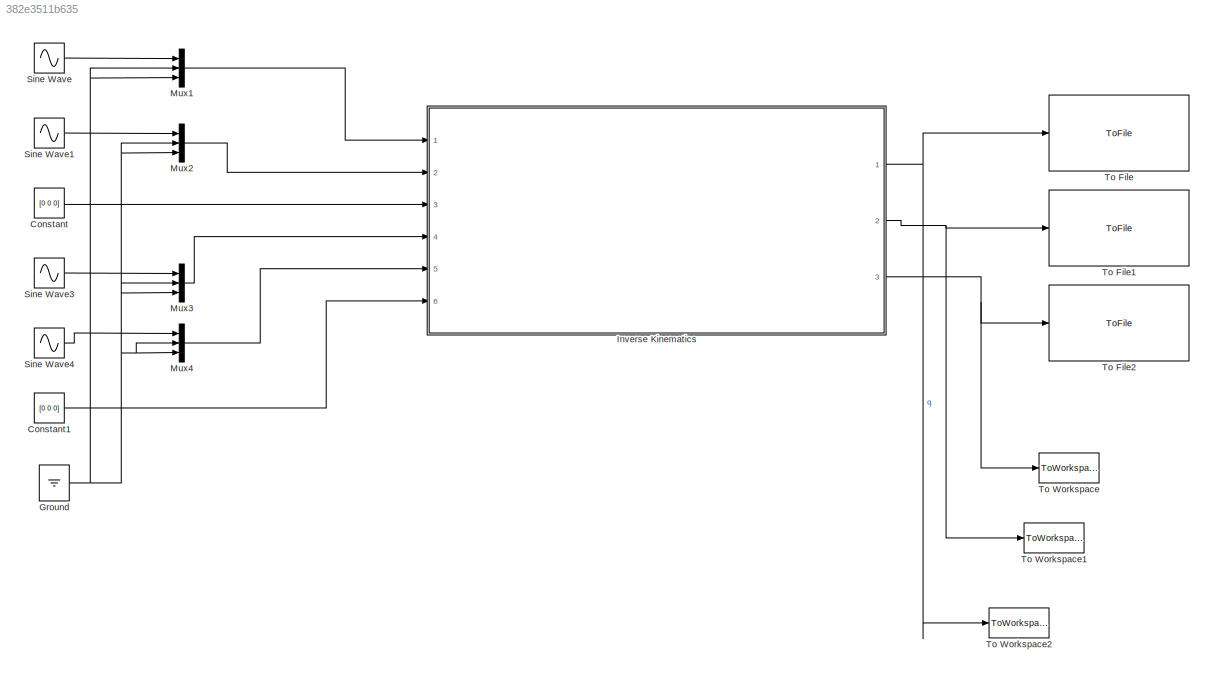
MODEL slx_382e3511b635
KIND model
CONFIG AbsTol = auto
CONFIG EnableMultiTasking = on
CONFIG FixedStep = auto
CONFIG MaxStep = auto
CONFIG MinStep = auto
CONFIG RelTol = 1e-3
CONFIG SampleTimeConstraint = Unconstrained
CONFIG Solver = VariableStepAuto
CONFIG SolverName = VariableStepAuto
CONFIG StartTime = 0.0
CONFIG StopTime = 10.0
BLOCK [Constant] Constant
  Value = [0 0 0]
  VectorParams1D = off
BLOCK [Constant] Constant1
  Value = [0 0 0]
  VectorParams1D = off
BLOCK [Ground] Ground
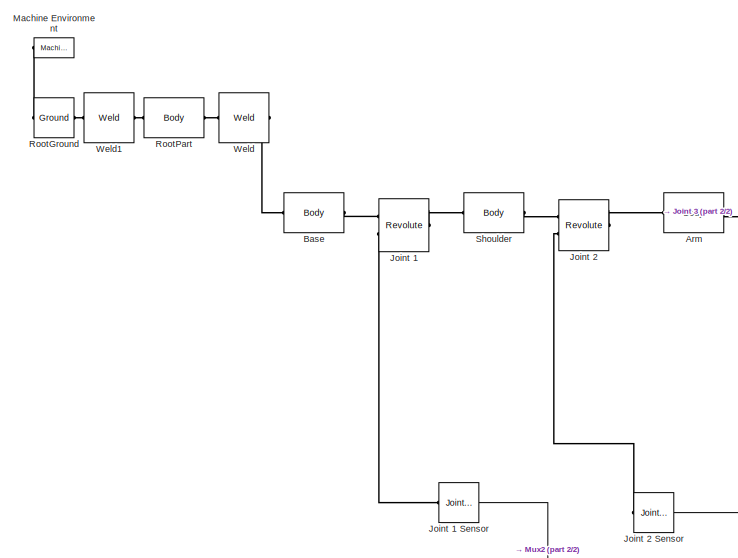
[diagram: Inverse Kinematics  - part 1/2, middle left region]
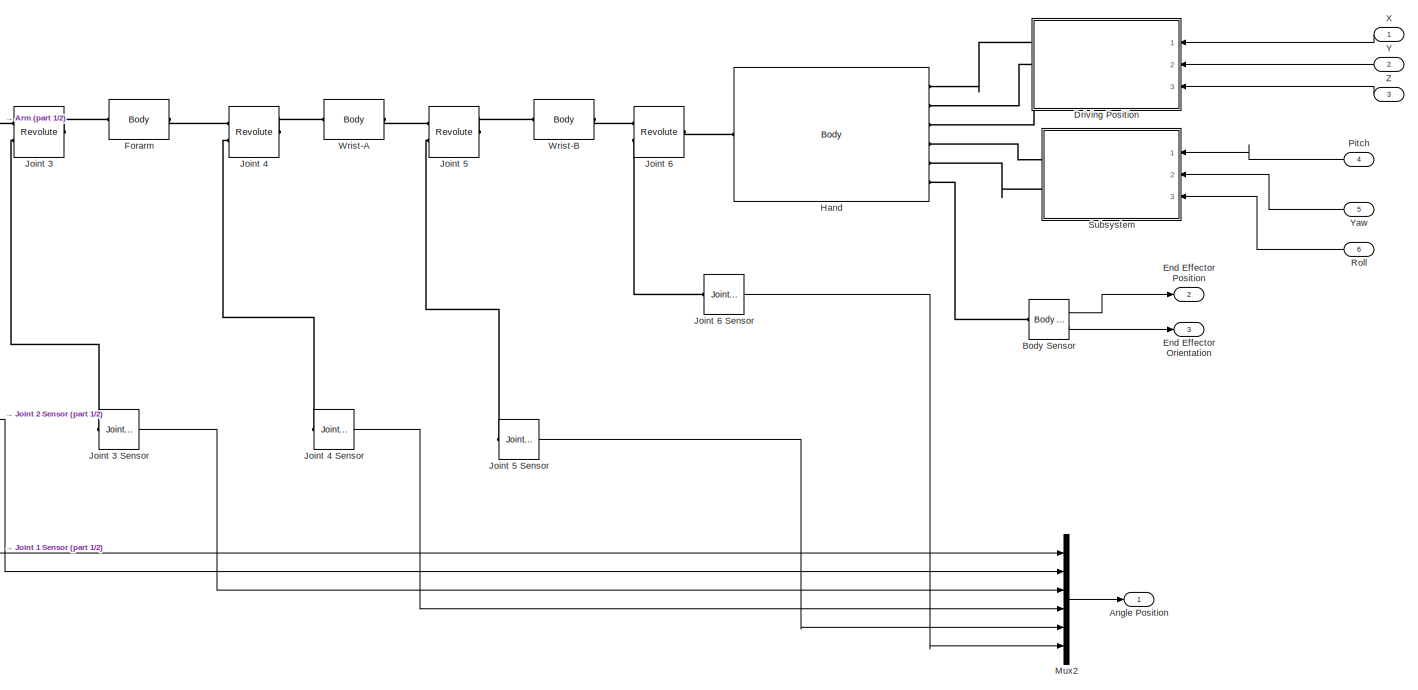
[diagram: Inverse Kinematics  - part 2/2, right side, full height]
BLOCK [SubSystem] Inverse Kinematics 
  Ports = [6, 3]
  RequestExecContextInheritance = off
  Variant = off
BLOCK [Inport] Inverse Kinematics / X
  IconDisplay = Port number
BLOCK [Outport] Inverse Kinematics /Angle Position 
  IconDisplay = Port number
BLOCK [Reference] Inverse Kinematics /Arm  REF=mblibv1/Bodies/Body
  Ports = [0, 0, 0, 0, 0, 1, 1]
  SourceBlock = mblibv1/Bodies/Body
  SourceProductBaseCode = MS
  SourceProductName = Simscape Multibody
  SourceType = Body
BLOCK [Reference] Inverse Kinematics /Base  REF=mblibv1/Bodies/Body
  Ports = [0, 0, 0, 0, 0, 1, 1]
  SourceBlock = mblibv1/Bodies/Body
  SourceProductBaseCode = MS
  SourceProductName = Simscape Multibody
  SourceType = Body
BLOCK [Reference] Inverse Kinematics /Body Sensor  REF=mblibv1/Sensors & 
Actuators/Body Sensor
  Ports = [0, 2, 0, 0, 0, 1]
  SourceBlock = mblibv1/Sensors & \nActuators/Body Sensor
  SourceProductBaseCode = MS
  SourceProductName = Simscape Multibody
  SourceType = Body Sensor
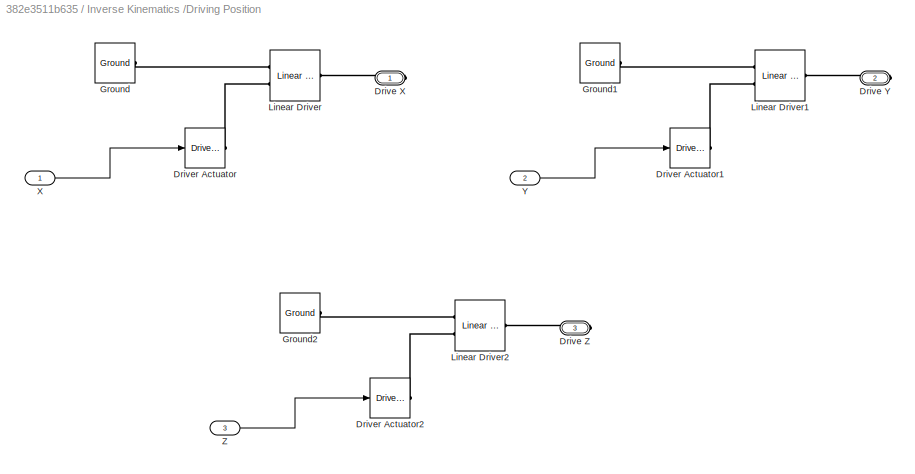
BLOCK [SubSystem] Inverse Kinematics /Driving Position
  Ports = [3, 0, 0, 0, 0, 0, 3]
  RequestExecContextInheritance = off
  Variant = off
BLOCK [PMIOPort] Inverse Kinematics /Driving Position/Drive X
  Port = 1
  Side = Right
BLOCK [PMIOPort] Inverse Kinematics /Driving Position/Drive Y
  Port = 2
  Side = Right
BLOCK [PMIOPort] Inverse Kinematics /Driving Position/Drive Z
  Port = 3
  Side = Right
BLOCK [Reference] Inverse Kinematics /Driving Position/Driver Actuator  REF=mblibv1/Sensors & 
Actuators/Driver Actuator
  Ports = [1, 0, 0, 0, 0, 0, 1]
  SourceBlock = mblibv1/Sensors & \nActuators/Driver Actuator
  SourceProductBaseCode = MS
  SourceProductName = Simscape Multibody
  SourceType = Driver Actuator
BLOCK [Reference] Inverse Kinematics /Driving Position/Driver Actuator1  REF=mblibv1/Sensors & 
Actuators/Driver Actuator
  Ports = [1, 0, 0, 0, 0, 0, 1]
  SourceBlock = mblibv1/Sensors & \nActuators/Driver Actuator
  SourceProductBaseCode = MS
  SourceProductName = Simscape Multibody
  SourceType = Driver Actuator
BLOCK [Reference] Inverse Kinematics /Driving Position/Driver Actuator2  REF=mblibv1/Sensors & 
Actuators/Driver Actuator
  Ports = [1, 0, 0, 0, 0, 0, 1]
  SourceBlock = mblibv1/Sensors & \nActuators/Driver Actuator
  SourceProductBaseCode = MS
  SourceProductName = Simscape Multibody
  SourceType = Driver Actuator
BLOCK [Reference] Inverse Kinematics /Driving Position/Ground  REF=mblibv1/Bodies/Ground
  Ports = [0, 0, 0, 0, 0, 0, 1]
  SourceBlock = mblibv1/Bodies/Ground
  SourceProductBaseCode = MS
  SourceProductName = Simscape Multibody
  SourceType = Ground
  UserDataPersistent = on
BLOCK [Reference] Inverse Kinematics /Driving Position/Ground1  REF=mblibv1/Bodies/Ground
  Ports = [0, 0, 0, 0, 0, 0, 1]
  SourceBlock = mblibv1/Bodies/Ground
  SourceProductBaseCode = MS
  SourceProductName = Simscape Multibody
  SourceType = Ground
  UserDataPersistent = on
BLOCK [Reference] Inverse Kinematics /Driving Position/Ground2  REF=mblibv1/Bodies/Ground
  Ports = [0, 0, 0, 0, 0, 0, 1]
  SourceBlock = mblibv1/Bodies/Ground
  SourceProductBaseCode = MS
  SourceProductName = Simscape Multibody
  SourceType = Ground
  UserDataPersistent = on
BLOCK [Reference] Inverse Kinematics /Driving Position/Linear Driver  REF=mblibv1/Constraints & 
Drivers/Linear Driver
  Ports = [0, 0, 0, 0, 0, 2, 1]
  SourceBlock = mblibv1/Constraints & \nDrivers/Linear Driver
  SourceProductBaseCode = MS
  SourceProductName = Simscape Multibody
  SourceType = Linear Driver
BLOCK [Reference] Inverse Kinematics /Driving Position/Linear Driver1  REF=mblibv1/Constraints & 
Drivers/Linear Driver
  Ports = [0, 0, 0, 0, 0, 2, 1]
  SourceBlock = mblibv1/Constraints & \nDrivers/Linear Driver
  SourceProductBaseCode = MS
  SourceProductName = Simscape Multibody
  SourceType = Linear Driver
BLOCK [Reference] Inverse Kinematics /Driving Position/Linear Driver2  REF=mblibv1/Constraints & 
Drivers/Linear Driver
  Ports = [0, 0, 0, 0, 0, 2, 1]
  SourceBlock = mblibv1/Constraints & \nDrivers/Linear Driver
  SourceProductBaseCode = MS
  SourceProductName = Simscape Multibody
  SourceType = Linear Driver
BLOCK [Inport] Inverse Kinematics /Driving Position/X 
  IconDisplay = Port number
BLOCK [Inport] Inverse Kinematics /Driving Position/Y
  IconDisplay = Port number
  Port = 2
BLOCK [Inport] Inverse Kinematics /Driving Position/Z
  IconDisplay = Port number
  Port = 3
BLOCK [Outport] Inverse Kinematics /End Effector Orientation
  IconDisplay = Port number
  Port = 3
BLOCK [Outport] Inverse Kinematics /End Effector Position
  IconDisplay = Port number
  Port = 2
BLOCK [Reference] Inverse Kinematics /Forarm  REF=mblibv1/Bodies/Body
  Ports = [0, 0, 0, 0, 0, 1, 1]
  SourceBlock = mblibv1/Bodies/Body
  SourceProductBaseCode = MS
  SourceProductName = Simscape Multibody
  SourceType = Body
BLOCK [Reference] Inverse Kinematics /Hand  REF=mblibv1/Bodies/Body
  Ports = [0, 0, 0, 0, 0, 1, 6]
  SourceBlock = mblibv1/Bodies/Body
  SourceProductBaseCode = MS
  SourceProductName = Simscape Multibody
  SourceType = Body
BLOCK [Reference] Inverse Kinematics /Joint 1  REF=mblibv1/Joints/Revolute
  Ports = [0, 0, 0, 0, 0, 2, 1]
  SourceBlock = mblibv1/Joints/Revolute
  SourceProductBaseCode = MS
  SourceProductName = Simscape Multibody
  SourceType = Revolute
BLOCK [Reference] Inverse Kinematics /Joint 1 Sensor  REF=mblibv1/Sensors & 
Actuators/Joint Sensor
  Ports = [0, 1, 0, 0, 0, 1]
  SourceBlock = mblibv1/Sensors & \nActuators/Joint Sensor
  SourceProductBaseCode = MS
  SourceProductName = Simscape Multibody
  SourceType = Joint Sensor
BLOCK [Reference] Inverse Kinematics /Joint 2  REF=mblibv1/Joints/Revolute
  Ports = [0, 0, 0, 0, 0, 2, 1]
  SourceBlock = mblibv1/Joints/Revolute
  SourceProductBaseCode = MS
  SourceProductName = Simscape Multibody
  SourceType = Revolute
BLOCK [Reference] Inverse Kinematics /Joint 2 Sensor  REF=mblibv1/Sensors & 
Actuators/Joint Sensor
  Ports = [0, 1, 0, 0, 0, 1]
  SourceBlock = mblibv1/Sensors & \nActuators/Joint Sensor
  SourceProductBaseCode = MS
  SourceProductName = Simscape Multibody
  SourceType = Joint Sensor
BLOCK [Reference] Inverse Kinematics /Joint 3  REF=mblibv1/Joints/Revolute
  Ports = [0, 0, 0, 0, 0, 2, 1]
  SourceBlock = mblibv1/Joints/Revolute
  SourceProductBaseCode = MS
  SourceProductName = Simscape Multibody
  SourceType = Revolute
BLOCK [Reference] Inverse Kinematics /Joint 3 Sensor  REF=mblibv1/Sensors & 
Actuators/Joint Sensor
  Ports = [0, 1, 0, 0, 0, 1]
  SourceBlock = mblibv1/Sensors & \nActuators/Joint Sensor
  SourceProductBaseCode = MS
  SourceProductName = Simscape Multibody
  SourceType = Joint Sensor
BLOCK [Reference] Inverse Kinematics /Joint 4  REF=mblibv1/Joints/Revolute
  Ports = [0, 0, 0, 0, 0, 2, 1]
  SourceBlock = mblibv1/Joints/Revolute
  SourceProductBaseCode = MS
  SourceProductName = Simscape Multibody
  SourceType = Revolute
BLOCK [Reference] Inverse Kinematics /Joint 4 Sensor  REF=mblibv1/Sensors & 
Actuators/Joint Sensor
  Ports = [0, 1, 0, 0, 0, 1]
  SourceBlock = mblibv1/Sensors & \nActuators/Joint Sensor
  SourceProductBaseCode = MS
  SourceProductName = Simscape Multibody
  SourceType = Joint Sensor
BLOCK [Reference] Inverse Kinematics /Joint 5  REF=mblibv1/Joints/Revolute
  Ports = [0, 0, 0, 0, 0, 2, 1]
  SourceBlock = mblibv1/Joints/Revolute
  SourceProductBaseCode = MS
  SourceProductName = Simscape Multibody
  SourceType = Revolute
BLOCK [Reference] Inverse Kinematics /Joint 5 Sensor  REF=mblibv1/Sensors & 
Actuators/Joint Sensor
  Ports = [0, 1, 0, 0, 0, 1]
  SourceBlock = mblibv1/Sensors & \nActuators/Joint Sensor
  SourceProductBaseCode = MS
  SourceProductName = Simscape Multibody
  SourceType = Joint Sensor
BLOCK [Reference] Inverse Kinematics /Joint 6  REF=mblibv1/Joints/Revolute
  Ports = [0, 0, 0, 0, 0, 2, 1]
  SourceBlock = mblibv1/Joints/Revolute
  SourceProductBaseCode = MS
  SourceProductName = Simscape Multibody
  SourceType = Revolute
BLOCK [Reference] Inverse Kinematics /Joint 6 Sensor  REF=mblibv1/Sensors & 
Actuators/Joint Sensor
  Ports = [0, 1, 0, 0, 0, 1]
  SourceBlock = mblibv1/Sensors & \nActuators/Joint Sensor
  SourceProductBaseCode = MS
  SourceProductName = Simscape Multibody
  SourceType = Joint Sensor
BLOCK [Reference] Inverse Kinematics /Machine Environment  REF=mblibv1/Bodies/Machine
Environment
  Ports = [0, 0, 0, 0, 0, 0, 1]
  SourceBlock = mblibv1/Bodies/Machine\nEnvironment
  SourceProductBaseCode = MS
  SourceProductName = Simscape Multibody
  SourceType = Machine Environment
BLOCK [Mux] Inverse Kinematics /Mux2
  DisplayOption = bar
  Inputs = 6
  Ports = [6, 1]
BLOCK [Inport] Inverse Kinematics /Pitch
  IconDisplay = Port number
  Port = 4
BLOCK [Inport] Inverse Kinematics /Roll 
  IconDisplay = Port number
  Port = 6
BLOCK [Reference] Inverse Kinematics /RootGround  REF=mblibv1/Bodies/Ground
  Ports = [0, 0, 0, 0, 0, 1, 1]
  SourceBlock = mblibv1/Bodies/Ground
  SourceProductBaseCode = MS
  SourceProductName = Simscape Multibody
  SourceType = Ground
  UserDataPersistent = on
BLOCK [Reference] Inverse Kinematics /RootPart  REF=mblibv1/Bodies/Body
  Ports = [0, 0, 0, 0, 0, 1, 1]
  SourceBlock = mblibv1/Bodies/Body
  SourceProductBaseCode = MS
  SourceProductName = Simscape Multibody
  SourceType = Body
BLOCK [Reference] Inverse Kinematics /Shoulder  REF=mblibv1/Bodies/Body
  Ports = [0, 0, 0, 0, 0, 1, 1]
  SourceBlock = mblibv1/Bodies/Body
  SourceProductBaseCode = MS
  SourceProductName = Simscape Multibody
  SourceType = Body
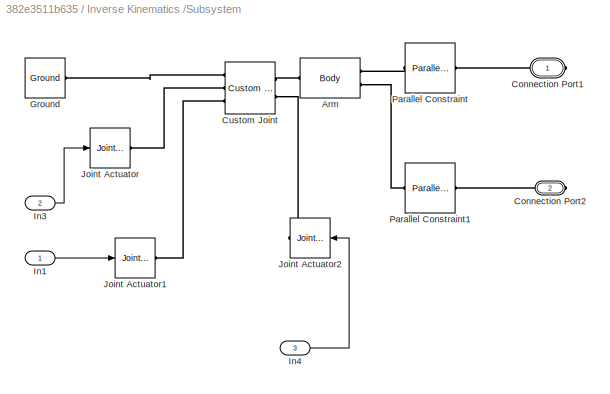
BLOCK [SubSystem] Inverse Kinematics /Subsystem
  Ports = [3, 0, 0, 0, 0, 0, 2]
  RequestExecContextInheritance = off
  Variant = off
BLOCK [Reference] Inverse Kinematics /Subsystem/Arm  REF=mblibv1/Bodies/Body
  Ports = [0, 0, 0, 0, 0, 1, 2]
  SourceBlock = mblibv1/Bodies/Body
  SourceProductBaseCode = MS
  SourceProductName = Simscape Multibody
  SourceType = Body
BLOCK [PMIOPort] Inverse Kinematics /Subsystem/Connection Port1
  Port = 1
  Side = Right
BLOCK [PMIOPort] Inverse Kinematics /Subsystem/Connection Port2
  Port = 2
  Side = Right
BLOCK [Reference] Inverse Kinematics /Subsystem/Custom Joint  REF=mblibv1/Joints/Custom Joint
  Ports = [0, 0, 0, 0, 0, 3, 2]
  SourceBlock = mblibv1/Joints/Custom Joint
  SourceProductBaseCode = MS
  SourceProductName = Simscape Multibody
  SourceType = Custom Joint
BLOCK [Reference] Inverse Kinematics /Subsystem/Ground  REF=mblibv1/Bodies/Ground
  Ports = [0, 0, 0, 0, 0, 0, 1]
  SourceBlock = mblibv1/Bodies/Ground
  SourceProductBaseCode = MS
  SourceProductName = Simscape Multibody
  SourceType = Ground
  UserDataPersistent = on
BLOCK [Inport] Inverse Kinematics /Subsystem/In1
  IconDisplay = Port number
BLOCK [Inport] Inverse Kinematics /Subsystem/In3
  IconDisplay = Port number
  Port = 2
BLOCK [Inport] Inverse Kinematics /Subsystem/In4
  IconDisplay = Port number
  Port = 3
BLOCK [Reference] Inverse Kinematics /Subsystem/Joint Actuator  REF=mblibv1/Sensors & 
Actuators/Joint Actuator
  Ports = [1, 0, 0, 0, 0, 0, 1]
  SourceBlock = mblibv1/Sensors & \nActuators/Joint Actuator
  SourceProductBaseCode = MS
  SourceProductName = Simscape Multibody
  SourceType = Joint Actuator
BLOCK [Reference] Inverse Kinematics /Subsystem/Joint Actuator1  REF=mblibv1/Sensors & 
Actuators/Joint Actuator
  Ports = [1, 0, 0, 0, 0, 0, 1]
  SourceBlock = mblibv1/Sensors & \nActuators/Joint Actuator
  SourceProductBaseCode = MS
  SourceProductName = Simscape Multibody
  SourceType = Joint Actuator
BLOCK [Reference] Inverse Kinematics /Subsystem/Joint Actuator2  REF=mblibv1/Sensors & 
Actuators/Joint Actuator
  Ports = [1, 0, 0, 0, 0, 0, 1]
  SourceBlock = mblibv1/Sensors & \nActuators/Joint Actuator
  SourceProductBaseCode = MS
  SourceProductName = Simscape Multibody
  SourceType = Joint Actuator
BLOCK [Reference] Inverse Kinematics /Subsystem/Parallel Constraint  REF=mblibv1/Constraints & 
Drivers/Parallel Constraint
  Ports = [0, 0, 0, 0, 0, 1, 1]
  SourceBlock = mblibv1/Constraints & \nDrivers/Parallel Constraint
  SourceProductBaseCode = MS
  SourceProductName = Simscape Multibody
  SourceType = Parallel Constraint
BLOCK [Reference] Inverse Kinematics /Subsystem/Parallel Constraint1  REF=mblibv1/Constraints & 
Drivers/Parallel Constraint
  Ports = [0, 0, 0, 0, 0, 1, 1]
  SourceBlock = mblibv1/Constraints & \nDrivers/Parallel Constraint
  SourceProductBaseCode = MS
  SourceProductName = Simscape Multibody
  SourceType = Parallel Constraint
BLOCK [Reference] Inverse Kinematics /Weld  REF=mblibv1/Joints/Weld
  Ports = [0, 0, 0, 0, 0, 1, 1]
  SourceBlock = mblibv1/Joints/Weld
  SourceProductBaseCode = MS
  SourceProductName = Simscape Multibody
  SourceType = Weld
BLOCK [Reference] Inverse Kinematics /Weld1  REF=mblibv1/Joints/Weld
  Ports = [0, 0, 0, 0, 0, 1, 1]
  SourceBlock = mblibv1/Joints/Weld
  SourceProductBaseCode = MS
  SourceProductName = Simscape Multibody
  SourceType = Weld
BLOCK [Reference] Inverse Kinematics /Wrist-A  REF=mblibv1/Bodies/Body
  Ports = [0, 0, 0, 0, 0, 1, 1]
  SourceBlock = mblibv1/Bodies/Body
  SourceProductBaseCode = MS
  SourceProductName = Simscape Multibody
  SourceType = Body
BLOCK [Reference] Inverse Kinematics /Wrist-B  REF=mblibv1/Bodies/Body
  Ports = [0, 0, 0, 0, 0, 1, 1]
  SourceBlock = mblibv1/Bodies/Body
  SourceProductBaseCode = MS
  SourceProductName = Simscape Multibody
  SourceType = Body
BLOCK [Inport] Inverse Kinematics /Y
  IconDisplay = Port number
  Port = 2
BLOCK [Inport] Inverse Kinematics /Yaw
  IconDisplay = Port number
  Port = 5
BLOCK [Inport] Inverse Kinematics /Z
  IconDisplay = Port number
  Port = 3
BLOCK [Mux] Mux1
  DisplayOption = bar
  Inputs = 3
  Ports = [3, 1]
BLOCK [Mux] Mux2
  DisplayOption = bar
  Inputs = 3
  Ports = [3, 1]
BLOCK [Mux] Mux3
  DisplayOption = bar
  Inputs = 3
  Ports = [3, 1]
BLOCK [Mux] Mux4
  DisplayOption = bar
  Inputs = 3
  Ports = [3, 1]
BLOCK [Sin] Sine Wave
  Amplitude = 0.2
  Bias = -2
  Frequency = 2*pi
  Phase = pi/2
  Ports = [0, 1]
  SampleTime = 0
BLOCK [Sin] Sine Wave1
  Amplitude = 0.2
  Bias = -1
  Frequency = 2*pi
  Ports = [0, 1]
  SampleTime = 0
BLOCK [Sin] Sine Wave3
  Amplitude = 10
  Bias = 85
  Frequency = 2*pi
  Phase = pi
  Ports = [0, 1]
  SampleTime = 0
BLOCK [Sin] Sine Wave4
  Amplitude = 10
  Frequency = 2*pi
  Phase = pi/2
  Ports = [0, 1]
  SampleTime = 0
BLOCK [ToFile] To File
  Filename = JointAngles.mat
  MatrixName = q
  Ports = [1]
  SaveFormat = Timeseries
BLOCK [ToFile] To File1
  Filename = EEPosition.mat
  MatrixName = xe
  Ports = [1]
  SaveFormat = Timeseries
BLOCK [ToFile] To File2
  Filename = EEOrientation.mat
  MatrixName = thetae
  Ports = [1]
  SaveFormat = Timeseries
BLOCK [ToWorkspace] To Workspace
  FixptAsFi = on
  MaxDataPoints = inf
  Ports = [1]
  SampleTime = -1
  Save2DSignal = 3-D array (concatenate along third dimension)
  SaveFormat = Timeseries
  VariableName = simout
BLOCK [ToWorkspace] To Workspace1
  FixptAsFi = on
  MaxDataPoints = inf
  Ports = [1]
  SampleTime = -1
  Save2DSignal = 3-D array (concatenate along third dimension)
  SaveFormat = Timeseries
  VariableName = simout1
BLOCK [ToWorkspace] To Workspace2
  FixptAsFi = on
  MaxDataPoints = inf
  Ports = [1]
  SampleTime = -1
  Save2DSignal = 3-D array (concatenate along third dimension)
  SaveFormat = Timeseries
  VariableName = simout2
LINE Constant1:1 -> Inverse Kinematics :6
LINE Constant:1 -> Inverse Kinematics :3
NET Ground:1 -> Mux1:2, Mux1:3, Mux2:2, Mux2:3, Mux3:2, Mux3:3, Mux4:2, Mux4:3
LINE Inverse Kinematics / X:1 -> Inverse Kinematics /Driving Position:1
LINE Inverse Kinematics /Body Sensor:1 -> Inverse Kinematics /End Effector Position:1
LINE Inverse Kinematics /Body Sensor:2 -> Inverse Kinematics /End Effector Orientation:1
LINE Inverse Kinematics /Driving Position/X :1 -> Inverse Kinematics /Driving Position/Driver Actuator:1
LINE Inverse Kinematics /Driving Position/Y:1 -> Inverse Kinematics /Driving Position/Driver Actuator1:1
LINE Inverse Kinematics /Driving Position/Z:1 -> Inverse Kinematics /Driving Position/Driver Actuator2:1
LINE Inverse Kinematics /Joint 1 Sensor:1 -> Inverse Kinematics /Mux2:1
LINE Inverse Kinematics /Joint 2 Sensor:1 -> Inverse Kinematics /Mux2:2
LINE Inverse Kinematics /Joint 3 Sensor:1 -> Inverse Kinematics /Mux2:3
LINE Inverse Kinematics /Joint 4 Sensor:1 -> Inverse Kinematics /Mux2:4
LINE Inverse Kinematics /Joint 5 Sensor:1 -> Inverse Kinematics /Mux2:5
LINE Inverse Kinematics /Joint 6 Sensor:1 -> Inverse Kinematics /Mux2:6
LINE Inverse Kinematics /Mux2:1 -> Inverse Kinematics /Angle Position :1
LINE Inverse Kinematics /Pitch:1 -> Inverse Kinematics /Subsystem:1
LINE Inverse Kinematics /Roll :1 -> Inverse Kinematics /Subsystem:3
LINE Inverse Kinematics /Subsystem/In1:1 -> Inverse Kinematics /Subsystem/Joint Actuator1:1
LINE Inverse Kinematics /Subsystem/In3:1 -> Inverse Kinematics /Subsystem/Joint Actuator:1
LINE Inverse Kinematics /Subsystem/In4:1 -> Inverse Kinematics /Subsystem/Joint Actuator2:1
LINE Inverse Kinematics /Y:1 -> Inverse Kinematics /Driving Position:2
LINE Inverse Kinematics /Yaw:1 -> Inverse Kinematics /Subsystem:2
LINE Inverse Kinematics /Z:1 -> Inverse Kinematics /Driving Position:3
NET Inverse Kinematics :1 -> To File:1, To Workspace2:1
NET Inverse Kinematics :2 -> To File1:1, To Workspace1:1
NET Inverse Kinematics :3 -> To File2:1, To Workspace:1
LINE Mux1:1 -> Inverse Kinematics :1
LINE Mux2:1 -> Inverse Kinematics :2
LINE Mux3:1 -> Inverse Kinematics :4
LINE Mux4:1 -> Inverse Kinematics :5
LINE Sine Wave1:1 -> Mux2:1
LINE Sine Wave3:1 -> Mux3:1
LINE Sine Wave4:1 -> Mux4:1
LINE Sine Wave:1 -> Mux1:1
PLINE Inverse Kinematics /Arm:LConn1 -- Inverse Kinematics /Joint 2:RConn1
PLINE Inverse Kinematics /Arm:RConn1 -- Inverse Kinematics /Joint 3:LConn1
PLINE Inverse Kinematics /Base:LConn1 -- Inverse Kinematics /Weld:RConn1
PLINE Inverse Kinematics /Base:RConn1 -- Inverse Kinematics /Joint 1:LConn1
PLINE Inverse Kinematics /Body Sensor:LConn1 -- Inverse Kinematics /Hand:RConn6
PLINE Inverse Kinematics /Driving Position/Drive X:RConn1 -- Inverse Kinematics /Driving Position/Linear Driver:RConn1
PLINE Inverse Kinematics /Driving Position/Drive Y:RConn1 -- Inverse Kinematics /Driving Position/Linear Driver1:RConn1
PLINE Inverse Kinematics /Driving Position/Drive Z:RConn1 -- Inverse Kinematics /Driving Position/Linear Driver2:RConn1
PLINE Inverse Kinematics /Driving Position/Driver Actuator1:RConn1 -- Inverse Kinematics /Driving Position/Linear Driver1:LConn2
PLINE Inverse Kinematics /Driving Position/Driver Actuator2:RConn1 -- Inverse Kinematics /Driving Position/Linear Driver2:LConn2
PLINE Inverse Kinematics /Driving Position/Driver Actuator:RConn1 -- Inverse Kinematics /Driving Position/Linear Driver:LConn2
PLINE Inverse Kinematics /Driving Position/Ground1:RConn1 -- Inverse Kinematics /Driving Position/Linear Driver1:LConn1
PLINE Inverse Kinematics /Driving Position/Ground2:RConn1 -- Inverse Kinematics /Driving Position/Linear Driver2:LConn1
PLINE Inverse Kinematics /Driving Position/Ground:RConn1 -- Inverse Kinematics /Driving Position/Linear Driver:LConn1
PLINE Inverse Kinematics /Driving Position:RConn1 -- Inverse Kinematics /Hand:RConn1
PLINE Inverse Kinematics /Driving Position:RConn2 -- Inverse Kinematics /Hand:RConn2
PLINE Inverse Kinematics /Driving Position:RConn3 -- Inverse Kinematics /Hand:RConn3
PLINE Inverse Kinematics /Forarm:LConn1 -- Inverse Kinematics /Joint 3:RConn1
PLINE Inverse Kinematics /Forarm:RConn1 -- Inverse Kinematics /Joint 4:LConn1
PLINE Inverse Kinematics /Hand:LConn1 -- Inverse Kinematics /Joint 6:RConn1
PLINE Inverse Kinematics /Hand:RConn4 -- Inverse Kinematics /Subsystem:RConn1
PLINE Inverse Kinematics /Hand:RConn5 -- Inverse Kinematics /Subsystem:RConn2
PLINE Inverse Kinematics /Joint 1 Sensor:LConn1 -- Inverse Kinematics /Joint 1:LConn2
PLINE Inverse Kinematics /Joint 1:RConn1 -- Inverse Kinematics /Shoulder:LConn1
PLINE Inverse Kinematics /Joint 2 Sensor:LConn1 -- Inverse Kinematics /Joint 2:LConn2
PLINE Inverse Kinematics /Joint 2:LConn1 -- Inverse Kinematics /Shoulder:RConn1
PLINE Inverse Kinematics /Joint 3 Sensor:LConn1 -- Inverse Kinematics /Joint 3:LConn2
PLINE Inverse Kinematics /Joint 4 Sensor:LConn1 -- Inverse Kinematics /Joint 4:LConn2
PLINE Inverse Kinematics /Joint 4:RConn1 -- Inverse Kinematics /Wrist-A:LConn1
PLINE Inverse Kinematics /Joint 5 Sensor:LConn1 -- Inverse Kinematics /Joint 5:LConn2
PLINE Inverse Kinematics /Joint 5:LConn1 -- Inverse Kinematics /Wrist-A:RConn1
PLINE Inverse Kinematics /Joint 5:RConn1 -- Inverse Kinematics /Wrist-B:LConn1
PLINE Inverse Kinematics /Joint 6 Sensor:LConn1 -- Inverse Kinematics /Joint 6:LConn2
PLINE Inverse Kinematics /Joint 6:LConn1 -- Inverse Kinematics /Wrist-B:RConn1
PLINE Inverse Kinematics /Machine Environment:RConn1 -- Inverse Kinematics /RootGround:LConn1
PLINE Inverse Kinematics /RootGround:RConn1 -- Inverse Kinematics /Weld1:LConn1
PLINE Inverse Kinematics /RootPart:LConn1 -- Inverse Kinematics /Weld1:RConn1
PLINE Inverse Kinematics /RootPart:RConn1 -- Inverse Kinematics /Weld:LConn1
PLINE Inverse Kinematics /Subsystem/Arm:LConn1 -- Inverse Kinematics /Subsystem/Custom Joint:RConn1
PLINE Inverse Kinematics /Subsystem/Arm:RConn1 -- Inverse Kinematics /Subsystem/Parallel Constraint:LConn1
PLINE Inverse Kinematics /Subsystem/Arm:RConn2 -- Inverse Kinematics /Subsystem/Parallel Constraint1:LConn1
PLINE Inverse Kinematics /Subsystem/Connection Port1:RConn1 -- Inverse Kinematics /Subsystem/Parallel Constraint:RConn1
PLINE Inverse Kinematics /Subsystem/Connection Port2:RConn1 -- Inverse Kinematics /Subsystem/Parallel Constraint1:RConn1
PLINE Inverse Kinematics /Subsystem/Custom Joint:LConn1 -- Inverse Kinematics /Subsystem/Ground:RConn1
PLINE Inverse Kinematics /Subsystem/Custom Joint:LConn2 -- Inverse Kinematics /Subsystem/Joint Actuator:RConn1
PLINE Inverse Kinematics /Subsystem/Custom Joint:LConn3 -- Inverse Kinematics /Subsystem/Joint Actuator1:RConn1
PLINE Inverse Kinematics /Subsystem/Custom Joint:RConn2 -- Inverse Kinematics /Subsystem/Joint Actuator2:RConn1
note: NET lines group one-source signal fan-out (src -> all destinations, sorted); 1:1 wires keep LINE
